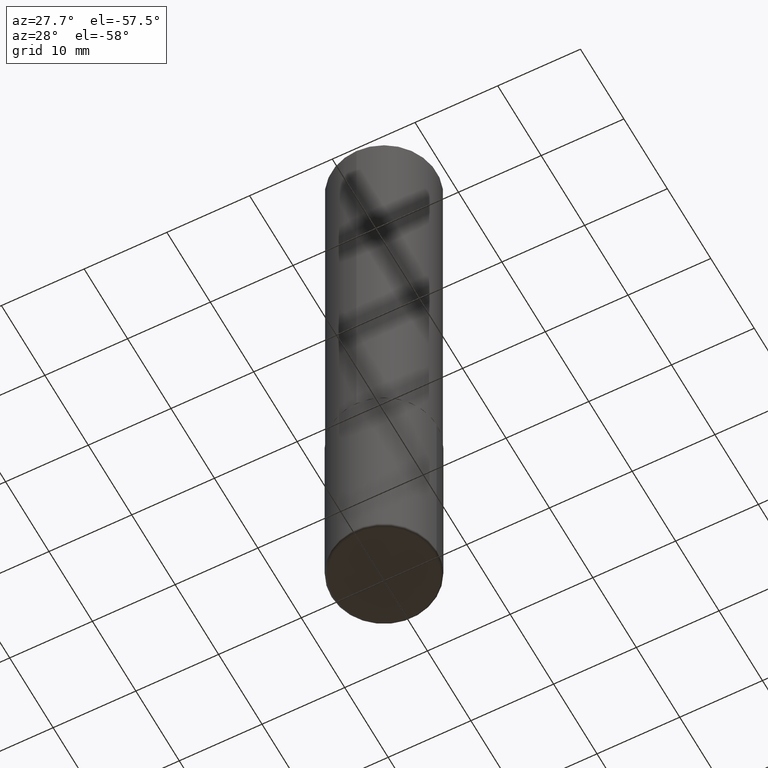
[diagram: clean part render]
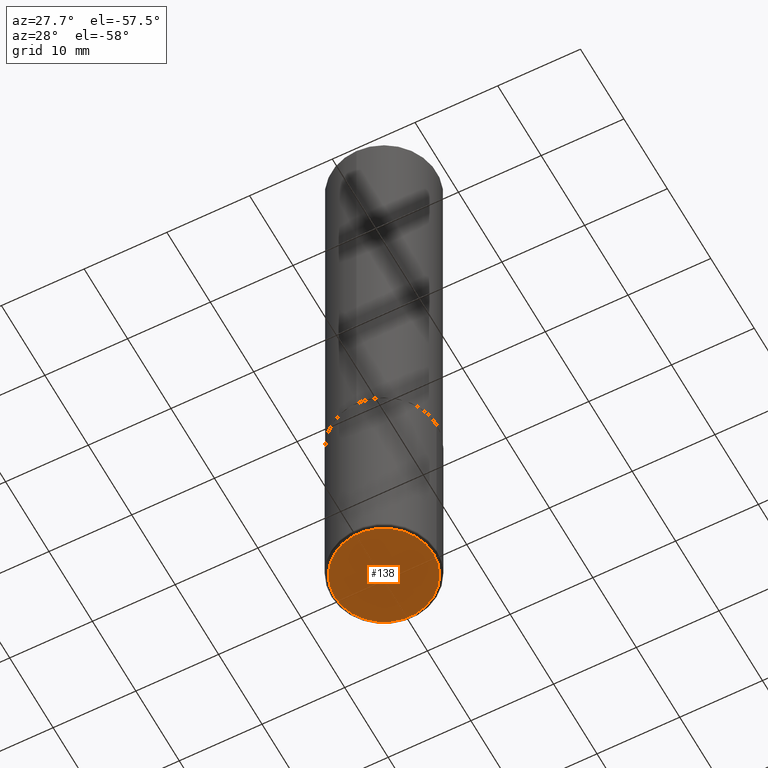
[diagram: same view with one face highlighted and labeled with its STEP entity id]
A machine part, auxiliary view. The second image highlights one B-rep face of the part: STEP entity #138.
In plain terms, the highlighted planar face has unit normal (0, -0, -1).
Its self-contained STEP definition (entity closure, byte-faithful):
#4 = DIRECTION ( 'NONE',  ( 2.438088387897960049E-29, -3.491481338843145188E-15, -1.000000000000000000 ) ) ;
#16 = EDGE_CURVE ( 'NONE', #184, #366, #210, .T. ) ;
#36 = EDGE_LOOP ( 'NONE', ( #61, #188 ) ) ;
#61 = ORIENTED_EDGE ( 'NONE', *, *, #16, .F. ) ;
#92 = FACE_OUTER_BOUND ( 'NONE', #36, .T. ) ;
#106 = DIRECTION ( 'NONE',  ( 1.000000000000000000, -6.982962677686271444E-15, 0.000000000000000000 ) ) ;
#138 = ADVANCED_FACE ( 'NONE', ( #92 ), #228, .T. ) ;
#141 = DIRECTION ( 'NONE',  ( 1.000000000000000000, -6.982962677686271444E-15, 0.000000000000000000 ) ) ;
#181 = AXIS2_PLACEMENT_3D ( 'NONE', #383, #220, #106 ) ;
#184 = VERTEX_POINT ( 'NONE', #400 ) ;
#188 = ORIENTED_EDGE ( 'NONE', *, *, #377, .F. ) ;
#198 = CARTESIAN_POINT ( 'NONE',  ( 7.336406418555409790E-29, -1.047444401652943635E-14, -3.000000000000000444 ) ) ;
#210 = CIRCLE ( 'NONE', #404, 0.2349999999999999867 ) ;
#220 = DIRECTION ( 'NONE',  ( -2.445468806185136597E-29, 3.491481338843145583E-15, 1.000000000000000000 ) ) ;
#228 = PLANE ( 'NONE',  #386 ) ;
#236 = CARTESIAN_POINT ( 'NONE',  ( 7.336406418555409790E-29, -1.047444401652943635E-14, -3.000000000000000444 ) ) ;
#271 = DIRECTION ( 'NONE',  ( -2.445468806185136597E-29, 3.491481338843145583E-15, 1.000000000000000000 ) ) ;
#346 = CIRCLE ( 'NONE', #181, 0.2349999999999999867 ) ;
#361 = CARTESIAN_POINT ( 'NONE',  ( -0.2349999999999999867, -8.725191772269868924E-15, -3.000000000000000444 ) ) ;
#366 = VERTEX_POINT ( 'NONE', #361 ) ;
#377 = EDGE_CURVE ( 'NONE', #366, #184, #346, .T. ) ;
#383 = CARTESIAN_POINT ( 'NONE',  ( 7.336406418555409790E-29, -1.047444401652943635E-14, -3.000000000000000444 ) ) ;
#386 = AXIS2_PLACEMENT_3D ( 'NONE', #198, #4, #388 ) ;
#388 = DIRECTION ( 'NONE',  ( -1.000000000000000000, 6.982962677686265922E-15, -4.876176775795935793E-29 ) ) ;
#400 = CARTESIAN_POINT ( 'NONE',  ( 0.2349999999999999867, -1.211544024578571124E-14, -3.000000000000000444 ) ) ;
#404 = AXIS2_PLACEMENT_3D ( 'NONE', #236, #271, #141 ) ;